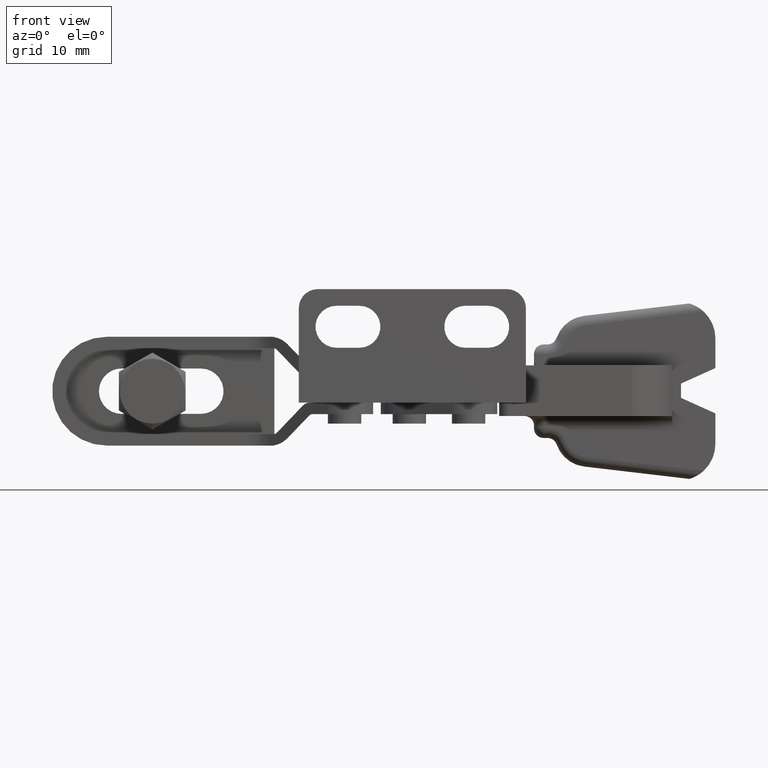
[diagram: clean part render]
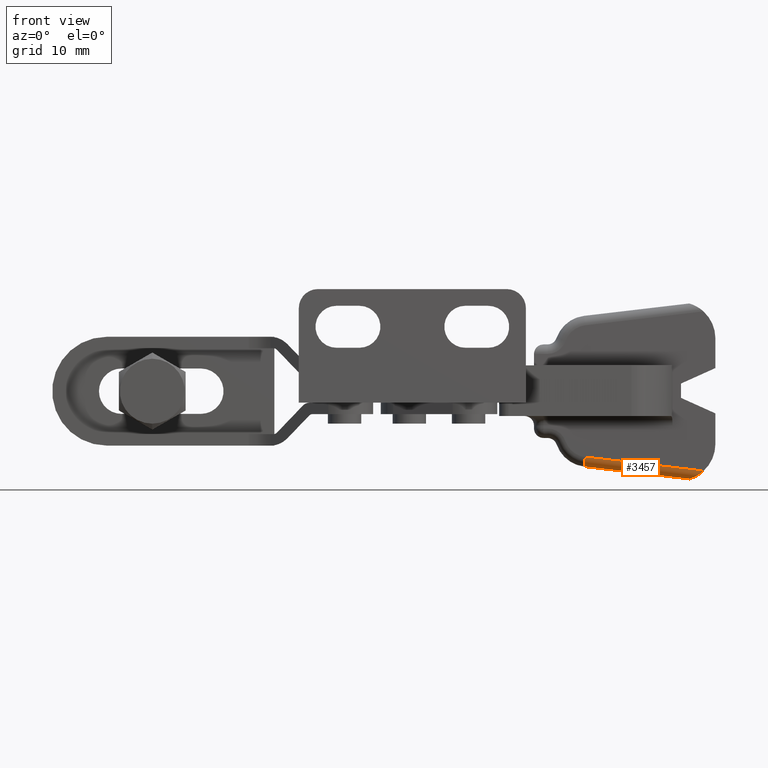
[diagram: same view with one face highlighted and labeled with its STEP entity id]
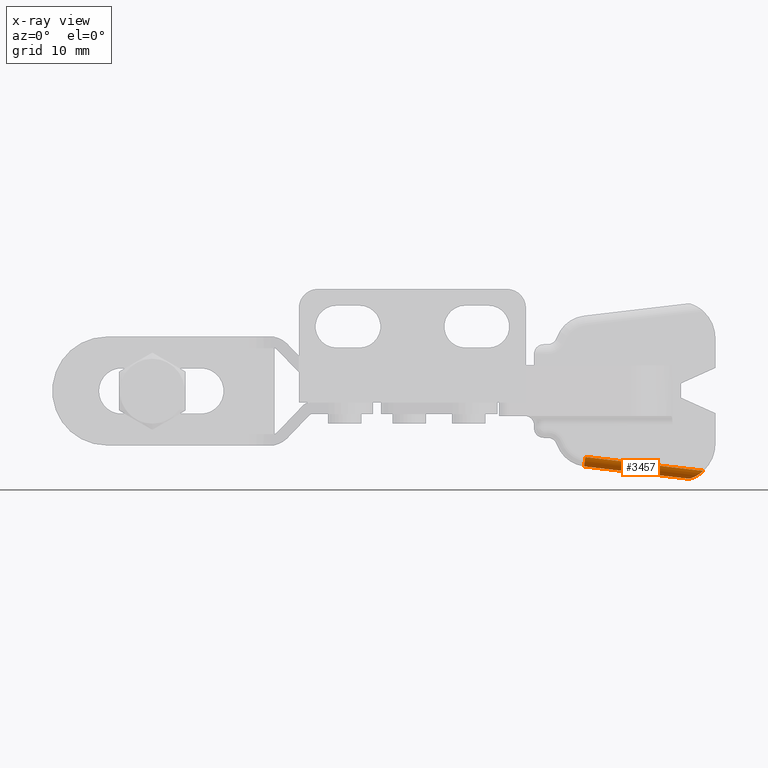
[diagram: x-ray of the same camera — body ghosted, the highlighted face saturated]
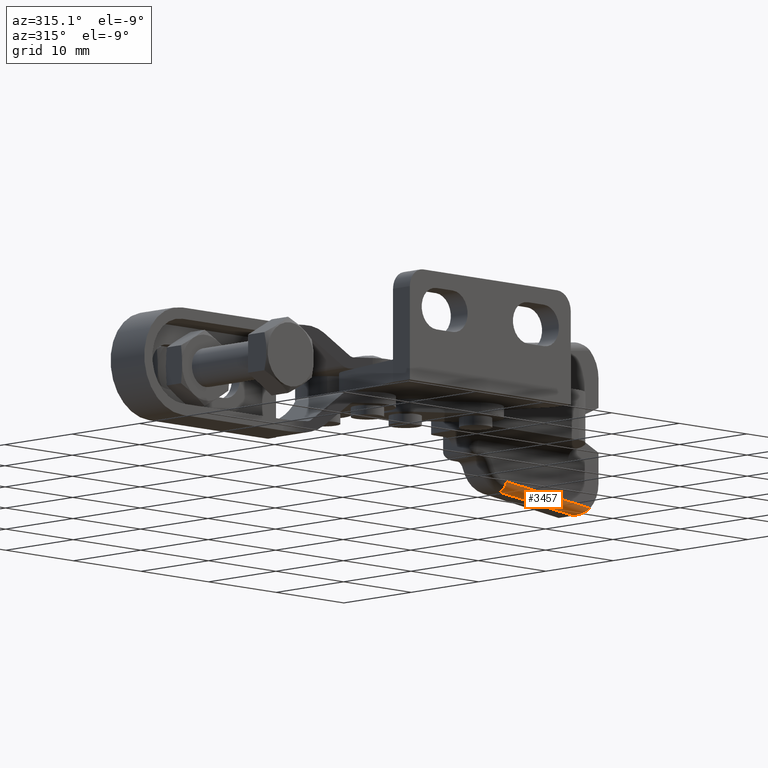
[diagram: same view with one face highlighted and labeled with its STEP entity id]
A machine part, front view. The second image highlights one B-rep face of the part: STEP entity #3457.
The next image is the same camera in x-ray: the body ghosted, the highlighted face saturated — about 0% of this face is hidden behind the body in this view.
A second angle (auxiliary view) of the same face is appended — the face is thin or edge-on in the first view.
In plain terms, the highlighted cylindrical surface (edge-blend (fillet) strip) has radius 1 mm, axis along (0.9932, 0, -0.1168).
Its self-contained STEP definition (entity closure, byte-faithful):
#12 = CARTESIAN_POINT ( 'NONE',  ( 41.42679714855513900, 16.13697181495053500, -9.008681689742493500 ) ) ;
#396 = DIRECTION ( 'NONE',  ( -0.1168412475668918500, -3.449157938428816200E-007, -0.9931506043228758300 ) ) ;
#478 = VERTEX_POINT ( 'NONE', #5237 ) ;
#584 = CARTESIAN_POINT ( 'NONE',  ( 10.89703558197913400, 16.80002047976000400, -4.653967357104911600 ) ) ;
#604 = DIRECTION ( 'NONE',  ( 0.9931506043185485100, 2.931784242392111700E-006, -0.1168412475674016500 ) ) ;
#669 = DIRECTION ( 'NONE',  ( -0.9931506043185482900, -2.931784242392111300E-006, 0.1168412475674016200 ) ) ;
#831 = CARTESIAN_POINT ( 'NONE',  ( 41.09932677048059400, 16.40863596173183600, -9.136129825049618300 ) ) ;
#952 = CARTESIAN_POINT ( 'NONE',  ( 29.90868823643828700, 16.80007660222867100, -7.897529008734860400 ) ) ;
#1625 = VECTOR ( 'NONE', #669, 1000.000000000000200 ) ;
#1640 = CARTESIAN_POINT ( 'NONE',  ( 40.95045800042448300, 16.62399777108313300, -9.183864714916937900 ) ) ;
#2119 = ORIENTED_EDGE ( 'NONE', *, *, #4321, .F. ) ;
#2260 = VERTEX_POINT ( 'NONE', #952 ) ;
#2389 = CARTESIAN_POINT ( 'NONE',  ( 40.91897709441859400, 16.80010910464193700, -9.192857109679421200 ) ) ;
#2396 = CARTESIAN_POINT ( 'NONE',  ( 40.91897709441859400, 16.80010910464193700, -9.192857109679421200 ) ) ;
#2477 = FACE_OUTER_BOUND ( 'NONE', #4821, .T. ) ;
#3015 = EDGE_CURVE ( 'NONE', #478, #2260, #8670, .T. ) ;
#3093 = VERTEX_POINT ( 'NONE', #8286 ) ;
#3349 = DIRECTION ( 'NONE',  ( 0.9931506043185482900, 2.931784242392111300E-006, -0.1168412475674016200 ) ) ;
#3457 = ADVANCED_FACE ( 'NONE', ( #2477 ), #8493, .T. ) ;
#3484 = LINE ( 'NONE', #3893, #9629 ) ;
#3875 = CARTESIAN_POINT ( 'NONE',  ( 42.13785263687053400, 15.82631607432335000, -8.588942980761352400 ) ) ;
#3893 = CARTESIAN_POINT ( 'NONE',  ( 41.03582129398916600, 15.80010944956209200, -8.199706505356536100 ) ) ;
#4172 = CARTESIAN_POINT ( 'NONE',  ( 29.90868823643829400, 16.80007660222867100, -7.897529008734862200 ) ) ;
#4321 = EDGE_CURVE ( 'NONE', #9899, #2260, #4322, .T. ) ;
#4322 = LINE ( 'NONE', #4172, #1625 ) ;
#4457 = EDGE_CURVE ( 'NONE', #478, #3093, #3484, .T. ) ;
#4615 = CARTESIAN_POINT ( 'NONE',  ( 41.71062390238215300, 15.97872925762061200, -8.865583150070085200 ) ) ;
#4821 = EDGE_LOOP ( 'NONE', ( #9271, #9492, #5916, #2119 ) ) ;
#5237 = CARTESIAN_POINT ( 'NONE',  ( 30.02553243600886600, 15.80007694714882400, -6.904378404411984200 ) ) ;
#5384 = CARTESIAN_POINT ( 'NONE',  ( 42.40815563390700000, 15.80011350069811500, -8.361157604171106400 ) ) ;
#5420 = CARTESIAN_POINT ( 'NONE',  ( 41.28685516729544200, 16.23055976592279800, -9.067629848531236500 ) ) ;
#5626 = EDGE_CURVE ( 'NONE', #3093, #9899, #9454, .T. ) ;
#5916 = ORIENTED_EDGE ( 'NONE', *, *, #3015, .T. ) ;
#6188 = CARTESIAN_POINT ( 'NONE',  ( 41.04082022242433000, 16.47457928608469800, -9.155513600115361000 ) ) ;
#6291 = AXIS2_PLACEMENT_3D ( 'NONE', #7395, #7382, #7385 ) ;
#6980 = CARTESIAN_POINT ( 'NONE',  ( 40.91897736081865800, 16.70986530075391100, -9.192857109679421200 ) ) ;
#7382 = DIRECTION ( 'NONE',  ( 0.9931506043185486200, 2.931784242391292200E-006, -0.1168412475674002200 ) ) ;
#7385 = DIRECTION ( 'NONE',  ( -0.1168412475668900200, -3.449157938428813500E-007, -0.9931506043228759400 ) ) ;
#7395 = CARTESIAN_POINT ( 'NONE',  ( 30.02552948400518300, 16.80007694714446800, -6.904378404411987800 ) ) ;
#7715 = CARTESIAN_POINT ( 'NONE',  ( 42.27584451016118500, 15.80011311011519700, -8.480940129355454700 ) ) ;
#8114 = AXIS2_PLACEMENT_3D ( 'NONE', #584, #604, #396 ) ;
#8286 = CARTESIAN_POINT ( 'NONE',  ( 42.40815563390700000, 15.80011350069811500, -8.361157604171106400 ) ) ;
#8493 = CYLINDRICAL_SURFACE ( 'NONE', #8114, 0.9999999999999996700 ) ;
#8670 = CIRCLE ( 'NONE', #6291, 1.000000000000000400 ) ;
#9253 = CARTESIAN_POINT ( 'NONE',  ( 41.85326168705423600, 15.91631488497161800, -8.782580709196881900 ) ) ;
#9271 = ORIENTED_EDGE ( 'NONE', *, *, #5626, .F. ) ;
#9454 = B_SPLINE_CURVE_WITH_KNOTS ( 'NONE', 3,
 ( #5384, #7715, #3875, #9253, #4615, #12, #5420, #831, #6188, #1640, #6980, #2396 ),
 .UNSPECIFIED., .F., .F.,
 ( 4, 2, 2, 2, 2, 4 ),
 ( 0.0000000000000000000, 0.0005298170523189120300, 0.001059634104637824100, 0.001589451156956736400, 0.001854359683116188300, 0.002119268209275640300 ),
 .UNSPECIFIED. ) ;
#9492 = ORIENTED_EDGE ( 'NONE', *, *, #4457, .F. ) ;
#9629 = VECTOR ( 'NONE', #3349, 1000.000000000000200 ) ;
#9899 = VERTEX_POINT ( 'NONE', #2389 ) ;